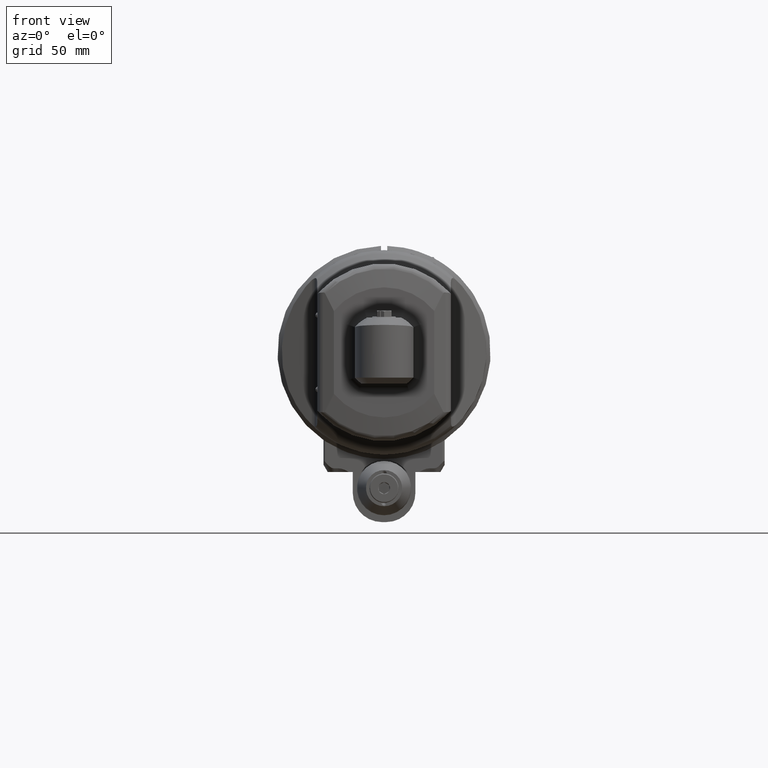
[diagram: clean part render]
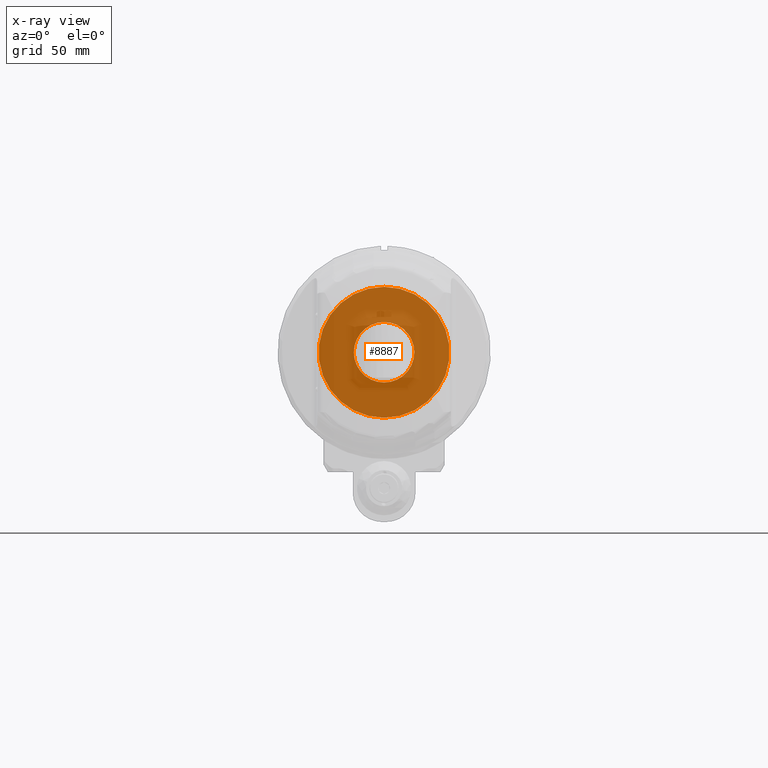
[diagram: x-ray — body ghosted, one internal face saturated and labeled with its STEP entity id]
A machine part, front view, then the same camera in x-ray: the body is ghosted and one INTERNAL B-rep face — a face not visible from any outside direction — is saturated and labeled: STEP entity #8887.
In plain terms, the highlighted planar face has unit normal (0, 1, 0).
Its self-contained STEP definition (entity closure, byte-faithful):
#101=FACE_BOUND('',#1246,.T.);
#313=PLANE('',#9531);
#697=FACE_OUTER_BOUND('',#1245,.T.);
#1245=EDGE_LOOP('',(#6270));
#1246=EDGE_LOOP('',(#6271,#6272));
#1819=CIRCLE('',#9532,31.35);
#2213=B_SPLINE_CURVE_WITH_KNOTS('',3,(#13595,#13596,#13597,#13598,#13599,
#13600,#13601,#13602,#13603,#13604,#13605,#13606,#13607,#13608,#13609,#13610,
#13611,#13612,#13613,#13614),.UNSPECIFIED.,.F.,.F.,(4,1,1,1,1,1,1,1,1,1,
1,1,1,1,1,1,1,4),(0.,0.05882352941176,0.1176470588235,0.1764705882353,0.2352941176471,
0.2941176470588,0.3529411764706,0.4117647058824,0.4705882352941,0.5294117647059,
0.5882352941176,0.6470588235294,0.7058823529412,0.7647058823529,0.8235294117647,
0.8823529411765,0.9411764705882,1.),.UNSPECIFIED.);
#2214=B_SPLINE_CURVE_WITH_KNOTS('',3,(#13615,#13616,#13617,#13618,#13619,
#13620,#13621,#13622,#13623,#13624,#13625,#13626,#13627,#13628,#13629,#13630,
#13631,#13632,#13633,#13634),.UNSPECIFIED.,.F.,.F.,(4,1,1,1,1,1,1,1,1,1,
1,1,1,1,1,1,1,4),(0.,0.05882352941176,0.1176470588235,0.1764705882353,0.2352941176471,
0.2941176470588,0.3529411764706,0.4117647058824,0.4705882352941,0.5294117647059,
0.5882352941176,0.6470588235294,0.7058823529412,0.7647058823529,0.8235294117647,
0.8823529411765,0.9411764705882,1.),.UNSPECIFIED.);
#3769=VERTEX_POINT('',#13591);
#3770=VERTEX_POINT('',#13593);
#3771=VERTEX_POINT('',#13594);
#4727=EDGE_CURVE('',#3769,#3769,#1819,.T.);
#4728=EDGE_CURVE('',#3770,#3771,#2213,.T.);
#4729=EDGE_CURVE('',#3771,#3770,#2214,.T.);
#6270=ORIENTED_EDGE('',*,*,#4727,.T.);
#6271=ORIENTED_EDGE('',*,*,#4728,.T.);
#6272=ORIENTED_EDGE('',*,*,#4729,.T.);
#8887=ADVANCED_FACE('',(#697,#101),#313,.F.);
#9531=AXIS2_PLACEMENT_3D('',#13590,#10694,#10695);
#9532=AXIS2_PLACEMENT_3D('',#13592,#10696,#10697);
#10694=DIRECTION('center_axis',(0.,1.,0.));
#10695=DIRECTION('ref_axis',(0.,0.,1.));
#10696=DIRECTION('center_axis',(0.,-1.,0.));
#10697=DIRECTION('ref_axis',(0.,0.,-1.));
#13590=CARTESIAN_POINT('Origin',(1.347113091385E-14,32.,0.));
#13591=CARTESIAN_POINT('',(-4.14064332999959E-18,32.,-31.35));
#13592=CARTESIAN_POINT('Origin',(1.61232300003015E-20,32.,0.));
#13593=CARTESIAN_POINT('',(14.5,32.,0.));
#13594=CARTESIAN_POINT('',(-14.5,32.,0.));
#13595=CARTESIAN_POINT('Ctrl Pts',(14.5,32.,0.));
#13596=CARTESIAN_POINT('Ctrl Pts',(14.49888450858,32.,-0.9016584831045));
#13597=CARTESIAN_POINT('Ctrl Pts',(14.33554001612,32.,-2.671468599625));
#13598=CARTESIAN_POINT('Ctrl Pts',(13.59869267255,32.,-5.268829729588));
#13599=CARTESIAN_POINT('Ctrl Pts',(12.39548495214,32.,-7.679337301994));
#13600=CARTESIAN_POINT('Ctrl Pts',(10.79223327368,32.,-9.806914598114));
#13601=CARTESIAN_POINT('Ctrl Pts',(8.79091572937801,32.,-11.63683328154));
#13602=CARTESIAN_POINT('Ctrl Pts',(6.49471575809501,32.,-13.0569736024));
#13603=CARTESIAN_POINT('Ctrl Pts',(3.97808609475701,32.,-14.02996751605));
#13604=CARTESIAN_POINT('Ctrl Pts',(1.33202254429501,32.,-14.52162747338));
#13605=CARTESIAN_POINT('Ctrl Pts',(-1.35501022133299,32.,-14.5192889571));
#13606=CARTESIAN_POINT('Ctrl Pts',(-3.99329212023499,32.,-14.02494121093));
#13607=CARTESIAN_POINT('Ctrl Pts',(-6.49596555590199,32.,-13.05524697636));
#13608=CARTESIAN_POINT('Ctrl Pts',(-8.77911230056899,32.,-11.64458652108));
#13609=CARTESIAN_POINT('Ctrl Pts',(-10.77438007515,32.,-9.825801018785));
#13610=CARTESIAN_POINT('Ctrl Pts',(-12.3799103196,32.,-7.704440983411));
#13611=CARTESIAN_POINT('Ctrl Pts',(-13.58956697316,32.,-5.293415155813));
#13612=CARTESIAN_POINT('Ctrl Pts',(-14.33354425829,32.,-2.687238459729));
#13613=CARTESIAN_POINT('Ctrl Pts',(-14.49853883461,32.,-0.9076552997688));
#13614=CARTESIAN_POINT('Ctrl Pts',(-14.5,32.,0.));
#13615=CARTESIAN_POINT('Ctrl Pts',(-14.5,32.,0.));
#13616=CARTESIAN_POINT('Ctrl Pts',(-14.49888450858,32.,0.9016584831045));
#13617=CARTESIAN_POINT('Ctrl Pts',(-14.33554001612,32.,2.671468599625));
#13618=CARTESIAN_POINT('Ctrl Pts',(-13.59869267255,32.,5.268829729588));
#13619=CARTESIAN_POINT('Ctrl Pts',(-12.39548495214,32.,7.679337301994));
#13620=CARTESIAN_POINT('Ctrl Pts',(-10.79223327368,32.,9.806914598114));
#13621=CARTESIAN_POINT('Ctrl Pts',(-8.79091572937799,32.,11.63683328154));
#13622=CARTESIAN_POINT('Ctrl Pts',(-6.49471575809499,32.,13.0569736024));
#13623=CARTESIAN_POINT('Ctrl Pts',(-3.97808609475699,32.,14.02996751605));
#13624=CARTESIAN_POINT('Ctrl Pts',(-1.33202254429499,32.,14.52162747338));
#13625=CARTESIAN_POINT('Ctrl Pts',(1.35501022133301,32.,14.5192889571));
#13626=CARTESIAN_POINT('Ctrl Pts',(3.99329212023501,32.,14.02494121093));
#13627=CARTESIAN_POINT('Ctrl Pts',(6.49596555590201,32.,13.05524697636));
#13628=CARTESIAN_POINT('Ctrl Pts',(8.77911230056901,32.,11.64458652108));
#13629=CARTESIAN_POINT('Ctrl Pts',(10.77438007515,32.,9.825801018785));
#13630=CARTESIAN_POINT('Ctrl Pts',(12.3799103196,32.,7.704440983411));
#13631=CARTESIAN_POINT('Ctrl Pts',(13.58956697316,32.,5.293415155813));
#13632=CARTESIAN_POINT('Ctrl Pts',(14.33354425829,32.,2.687238459729));
#13633=CARTESIAN_POINT('Ctrl Pts',(14.49853883461,32.,0.9076552997688));
#13634=CARTESIAN_POINT('Ctrl Pts',(14.5,32.,0.));